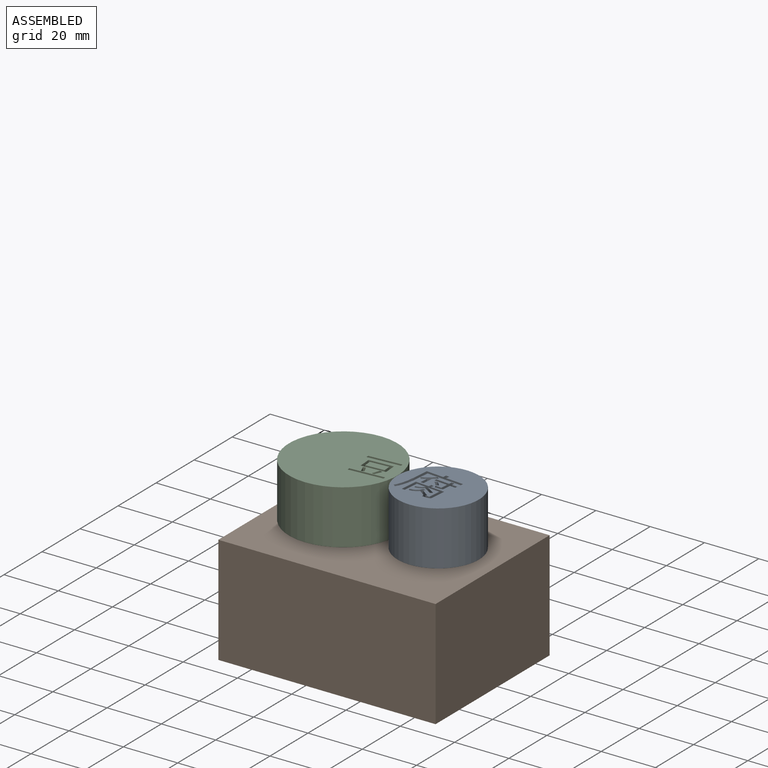
[diagram: assembled view]
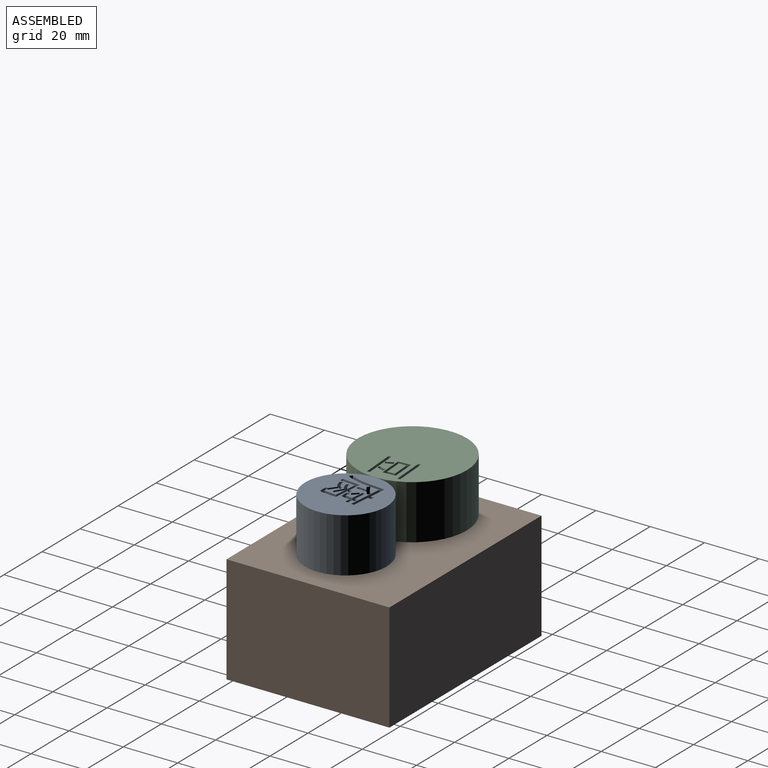
[diagram: assembled view, second angle]
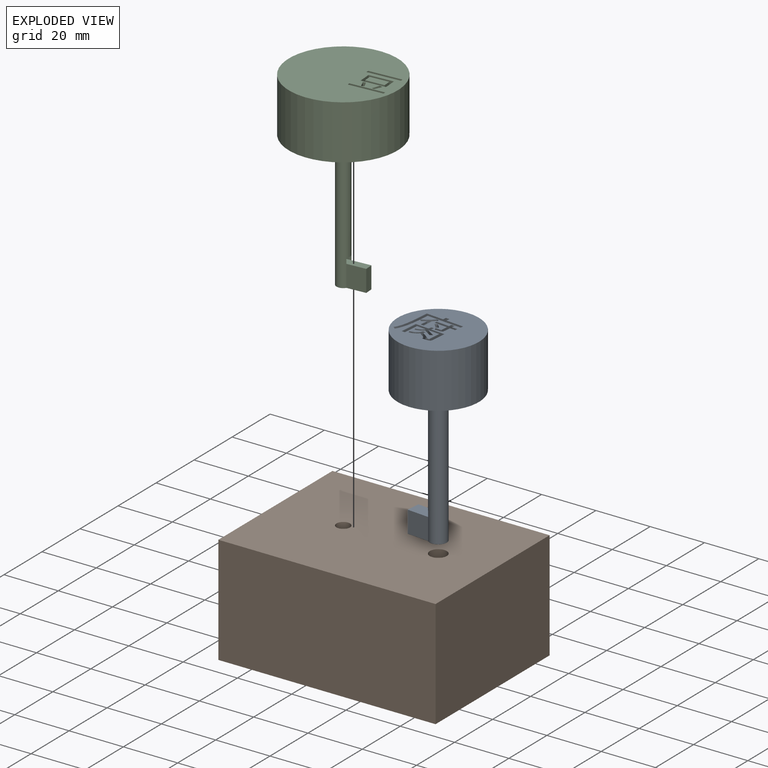
[diagram: exploded view]
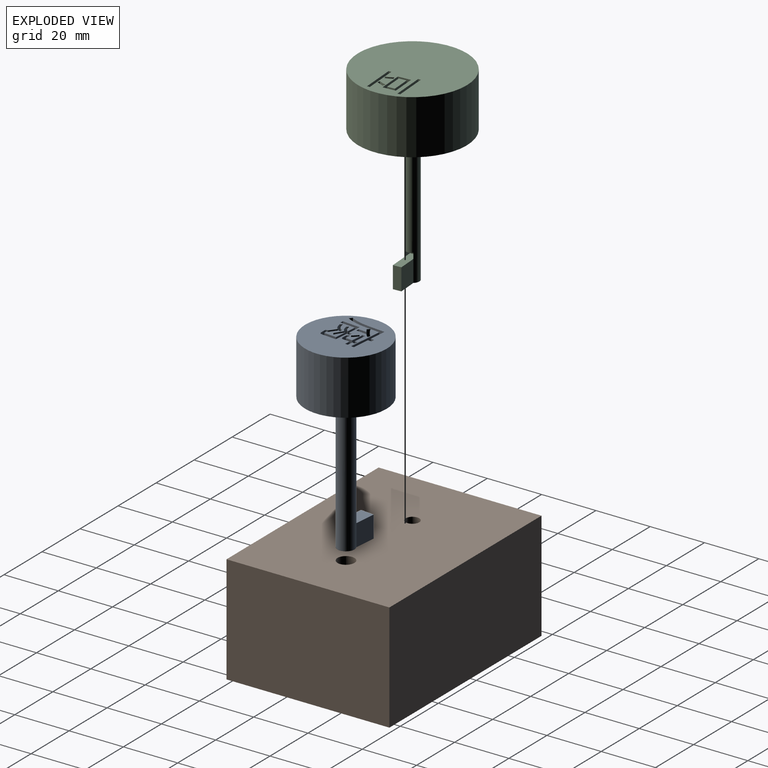
[diagram: exploded view, second angle]
ASSEMBLY  parts=3 mates=2
PART A: 90 faces, bbox 30x30x70 mm
  f0: cylinder r=3.13mm len=50mm, axis (0,0,1), area 924.8mm2, adj f3,f4,f5,f6,f8,f9,f10
  f1: cylinder r=15mm len=30mm, axis (0,0,-1), area 1885mm2, adj f2,f3
  f2: plane 30x30mm, normal (0,0,1), area 604.8mm2, adj f1,f13,f14,f15,f16,f17,f18,f19
  f3: plane 30x30mm, normal (0,0,-1), area 676.1mm2, adj f0,f1
  f4: plane 13.13x6.26mm, normal (0,0,-1), area 67mm2, adj f0,f5,f6,f7
  f5: plane 8.12x8mm, normal (0,-1,0), area 65mm2, adj f0,f4,f7,f12
  f6: plane 8.12x8mm, normal (0,1,0), area 65mm2, adj f0,f4,f7,f12
  f7: plane 8x5mm, normal (-1,0,0), area 40mm2, adj f4,f5,f6,f12
  f8: plane 2x1.88mm, normal (0,1,0), area 3.8mm2, adj f0,f10,f11,f12
  f9: plane 2x1.88mm, normal (0,-1,0), area 3.8mm2, adj f0,f10,f11,f12
  f10: plane 5x3.13mm, normal (0,0,-1), area 13.8mm2, adj f0,f8,f9,f11
  f11: plane 5x2mm, normal (-1,0,0), area 10mm2, adj f8,f9,f10,f12
  f12: plane 10x5mm, normal (0,0,1), area 50mm2, adj f5,f6,f7,f8,f9,f11
  f13: plane 5.38x3mm, normal (-1,0,0), area 16.1mm2, adj f2,f14,f44,f45
  f14: plane 5.24x3mm, normal (0,-1,0), area 15.7mm2, adj f2,f13,f15,f45
  f15: extruded ~3x1.14mm, area 3.5mm2, adj f2,f14,f16,f45
  f16: plane 3x1.04mm, normal (0,-1,0), area 3.1mm2, adj f2,f15,f17,f45
  f17: extruded ~3x1.14mm, area 3.5mm2, adj f2,f16,f18,f45
  f18: plane 4.91x3mm, normal (0,-1,0), area 14.7mm2, adj f2,f17,f19,f45
  f19: plane 6.63x3mm, normal (1,0,0), area 19.9mm2, adj f2,f18,f20,f45
  f20: plane 3x1.18mm, normal (0,1,0), area 3.5mm2, adj f2,f19,f21,f45
  f21: plane 5.69x3mm, normal (-1,0,0), area 17.1mm2, adj f2,f20,f22,f45
  f22: plane 3.35x3mm, normal (0,1,0), area 10mm2, adj f2,f21,f23,f45
  f23: extruded ~3x2.74mm, area 10mm2, adj f2,f22,f24,f45
  f24: extruded ~3x0.75mm, area 2.8mm2, adj f2,f23,f25,f45
  f25: extruded ~3x2.86mm, area 10mm2, adj f2,f24,f26,f45
  f26: extruded ~3.14x3mm, area 10.6mm2, adj f2,f25,f27,f45
  f27: plane 3x0.76mm, normal (-0.66,0.75,0), area 3.1mm2, adj f2,f26,f28,f45
  f28: extruded ~3.45x3mm, area 11.6mm2, adj f2,f27,f29,f45
  f29: plane 3x0.07mm, normal (-0.9,0.43,0), area 0.2mm2, adj f2,f28,f30,f45
  f30: plane 4.32x3mm, normal (0,1,0), area 13mm2, adj f2,f29,f31,f45
  f31: plane 4.44x3mm, normal (1,0,0), area 13.3mm2, adj f2,f30,f32,f45
  f32: extruded ~3x0.3mm, area 1.4mm2, adj f2,f31,f33,f45
  f33: extruded ~3x1.23mm, area 3.7mm2, adj f2,f32,f34,f45
  f34: plane 3x0.43mm, normal (-0.66,0.75,0), area 1.7mm2, adj f2,f33,f35,f45
  f35: extruded ~3.12x3mm, area 10.8mm2, adj f2,f34,f36,f45
  f36: extruded ~3x0.83mm, area 2.6mm2, adj f2,f35,f37,f45
  f37: plane 3x1.06mm, normal (0,-1,0), area 3.2mm2, adj f2,f36,f38,f45
  f38: extruded ~3.33x3mm, area 13.4mm2, adj f2,f37,f39,f45
  f39: extruded ~3x0.8mm, area 3mm2, adj f2,f38,f40,f45
  f40: extruded ~3.05x3mm, area 10.8mm2, adj f2,f39,f41,f45
  f41: extruded ~3x2.48mm, area 8.7mm2, adj f2,f40,f42,f45
  f42: extruded ~3x0.87mm, area 2.7mm2, adj f2,f41,f43,f45
  f43: extruded ~3x2.53mm, area 7.6mm2, adj f2,f42,f44,f45
  f44: extruded ~3x1.08mm, area 4mm2, adj f2,f13,f43,f45
  f45: plane 11.2x7.79mm, normal (0,0,1), area 41.8mm2, adj f13,f14,f15,f16,f17,f18,f19,f20
  f46: plane 6.56x3mm, normal (0,-1,0), area 19.7mm2, adj f2,f47,f66,f67
  f47: plane 3x1.33mm, normal (-1,0,0), area 4mm2, adj f2,f46,f48,f67
  f48: plane 3x1.32mm, normal (0,-1,0), area 4mm2, adj f2,f47,f49,f67
  f49: plane 3x1.33mm, normal (1,0,0), area 4mm2, adj f2,f48,f50,f67
  f50: plane 6.42x3mm, normal (0,-1,0), area 19.3mm2, adj f2,f49,f51,f67
  f51: plane 5.2x3mm, normal (1,0,0), area 15.6mm2, adj f2,f50,f52,f67
  f52: extruded ~8.59x3mm, area 26.4mm2, adj f2,f51,f53,f67
  f53: extruded ~3x1.01mm, area 3.7mm2, adj f2,f52,f54,f67
  f54: extruded ~9.31x3mm, area 28.7mm2, adj f2,f53,f55,f67
  f55: plane 3x0.69mm, normal (-1,0,0), area 2.1mm2, adj f2,f54,f56,f67
  f56: extruded ~3x0.83mm, area 3.5mm2, adj f2,f55,f57,f67
  f57: extruded ~3x1.58mm, area 5.8mm2, adj f2,f56,f58,f67
  f58: plane 3x2.93mm, normal (1,0,0), area 8.8mm2, adj f2,f57,f59,f67
  f59: plane 3x1.13mm, normal (0,1,0), area 3.4mm2, adj f2,f58,f60,f67
  f60: plane 3.95x3mm, normal (-1,0,0), area 11.9mm2, adj f2,f59,f61,f67
  f61: extruded ~3x1.61mm, area 6.3mm2, adj f2,f60,f62,f67
  f62: plane 3x1.09mm, normal (-0.3,-0.95,0), area 3.4mm2, adj f2,f61,f63,f67
  f63: extruded ~3.8x3.24mm, area 15.1mm2, adj f2,f62,f64,f67
  f64: plane 3.4x3mm, normal (-1,0,0), area 10.2mm2, adj f2,f63,f65,f67
  f65: plane 13.11x3mm, normal (0,1,0), area 39.3mm2, adj f2,f64,f66,f67
  f66: plane 3x1.08mm, normal (-1,0,0), area 3.2mm2, adj f2,f46,f65,f67
  f67: plane 15.85x15.78mm, normal (0,0,1), area 42.5mm2, adj f46,f47,f48,f49,f50,f51,f52,f53
  f68: plane 3x0.81mm, normal (-0.63,0.78,0), area 3.1mm2, adj f2,f69,f71,f72
  f69: extruded ~3x1.94mm, area 7.7mm2, adj f2,f68,f70,f72
  f70: plane 3x0.76mm, normal (0.61,-0.79,0), area 2.9mm2, adj f2,f69,f71,f72
  f71: extruded ~3x1.89mm, area 7.7mm2, adj f2,f68,f70,f72
  f72: plane 2.7x2.32mm, normal (0,0,1), area 2.5mm2, adj f68,f69,f70,f71
  f73: plane 3x1.13mm, normal (-1,0,0), area 3.4mm2, adj f2,f74,f88,f89
  f74: plane 3x1.2mm, normal (0,-1,0), area 3.6mm2, adj f2,f73,f75,f89
  f75: plane 3x1.13mm, normal (1,0,0), area 3.4mm2, adj f2,f74,f76,f89
  f76: plane 4.88x3mm, normal (0,-1,0), area 14.6mm2, adj f2,f75,f77,f89
  f77: plane 3x0.97mm, normal (1,0,0), area 2.9mm2, adj f2,f76,f78,f89
  f78: plane 4.88x3mm, normal (0,1,0), area 14.6mm2, adj f2,f77,f79,f89
  f79: plane 3x2.44mm, normal (1,0,0), area 7.3mm2, adj f2,f78,f80,f89
  f80: extruded ~3x0.3mm, area 1.4mm2, adj f2,f79,f81,f89
  f81: extruded ~3x1.84mm, area 5.5mm2, adj f2,f80,f82,f89
  f82: extruded ~3x0.97mm, area 3.1mm2, adj f2,f81,f83,f89
  f83: extruded ~3x2.38mm, area 7.2mm2, adj f2,f82,f84,f89
  f84: extruded ~3x1.02mm, area 3.9mm2, adj f2,f83,f85,f89
  f85: plane 3x2.46mm, normal (-1,0,0), area 7.4mm2, adj f2,f84,f86,f89
  f86: plane 3x2.08mm, normal (0,1,0), area 6.2mm2, adj f2,f85,f87,f89
  f87: plane 3x0.97mm, normal (-1,0,0), area 2.9mm2, adj f2,f86,f88,f89
  f88: plane 3x2.08mm, normal (0,-1,0), area 6.2mm2, adj f2,f73,f87,f89
  f89: plane 8.15x5.76mm, normal (0,0,1), area 15.2mm2, adj f73,f74,f75,f76,f77,f78,f79,f80
PART B: 8 faces, bbox 80x60x40 mm
  f0: plane 60x40mm, normal (1,0,0), area 2400mm2, adj f1,f3,f4,f5
  f1: plane 80x40mm, normal (0,1,0), area 3200mm2, adj f0,f2,f4,f5
  f2: plane 60x40mm, normal (-1,0,0), area 2400mm2, adj f1,f3,f4,f5
  f3: plane 80x40mm, normal (0,-1,0), area 3200mm2, adj f0,f2,f4,f5
  f4: plane 80x60mm, normal (0,0,1), area 4749.6mm2, adj f0,f1,f2,f3,f6,f7
  f5: plane 80x60mm, normal (0,0,-1), area 4749.6mm2, adj f0,f1,f2,f3,f6,f7
  f6: cylinder r=2.5mm len=40mm, axis (0,0,1), area 628.3mm2, adj f4,f5
  f7: cylinder r=3.13mm len=40mm, axis (0,0,1), area 786.2mm2, adj f4,f5
PART C: 43 faces, bbox 40x40x70 mm
  f0: plane 40x40mm, normal (0,0,1), area 1184.5mm2, adj f2,f13,f14,f15,f16,f18,f19,f20
  f1: cylinder r=2.5mm len=50mm, axis (0,0,1), area 753.2mm2, adj f3,f4,f5,f6,f8,f9,f10
  f2: cylinder r=20mm len=40mm, axis (0,0,-1), area 2513.3mm2, adj f0,f3
  f3: plane 40x40mm, normal (0,0,-1), area 1237mm2, adj f1,f2
  f4: plane 11.5x5mm, normal (0,0,-1), area 39.6mm2, adj f1,f5,f6,f7
  f5: plane 8x7mm, normal (0,-1,0), area 56mm2, adj f1,f4,f7,f12
  f6: plane 8x7mm, normal (0,1,0), area 56mm2, adj f1,f4,f7,f12
  f7: plane 8x3mm, normal (1,0,0), area 24mm2, adj f4,f5,f6,f12
  f8: plane 3x2mm, normal (0,1,0), area 6mm2, adj f1,f10,f11,f12
  f9: plane 3x2mm, normal (0,-1,0), area 6mm2, adj f1,f10,f11,f12
  f10: plane 3.5x3mm, normal (0,0,-1), area 10mm2, adj f1,f8,f9,f11
  f11: plane 3x2mm, normal (1,0,0), area 6mm2, adj f8,f9,f10,f12
  f12: plane 10x3mm, normal (0,0,1), area 30mm2, adj f5,f6,f7,f8,f9,f11
  f13: plane 12.62x3mm, normal (0,-1,0), area 37.9mm2, adj f0,f14,f16,f17
  f14: plane 3x1mm, normal (1,0,0), area 3mm2, adj f0,f13,f15,f17
  f15: plane 12.62x3mm, normal (0,1,0), area 37.9mm2, adj f0,f14,f16,f17
  f16: plane 3x1mm, normal (-1,0,0), area 3mm2, adj f0,f13,f15,f17
  f17: plane 12.62x1mm, normal (0,0,1), area 12.6mm2, adj f13,f14,f15,f16
  f18: plane 3x1.14mm, normal (-0.26,-0.96,0), area 3.5mm2, adj f0,f19,f21,f22
  f19: extruded ~3x2.72mm, area 8.9mm2, adj f0,f18,f20,f22
  f20: plane 3x0.92mm, normal (0.29,0.96,0), area 2.9mm2, adj f0,f19,f21,f22
  f21: extruded ~3x2.69mm, area 9.1mm2, adj f0,f18,f20,f22
  f22: plane 3x2.32mm, normal (0,0,1), area 3.1mm2, adj f18,f19,f20,f21
  f23: plane 3x0.95mm, normal (0.27,-0.96,0), area 3mm2, adj f0,f24,f26,f27
  f24: extruded ~3x2.63mm, area 8.4mm2, adj f0,f23,f25,f27
  f25: plane 3x1.01mm, normal (-0.3,0.96,0), area 3.2mm2, adj f0,f24,f26,f27
  f26: extruded ~3x2.59mm, area 8.4mm2, adj f0,f23,f25,f27
  f27: plane 2.9x1.98mm, normal (0,0,1), area 2.8mm2, adj f23,f24,f25,f26
  f28: plane 3x2.76mm, normal (-1,0,0), area 8.3mm2, adj f29,f35,f36,f42
  f29: plane 6.87x3mm, normal (0,1,0), area 20.6mm2, adj f28,f30,f36,f42
  f30: plane 3x2.76mm, normal (1,0,0), area 8.3mm2, adj f29,f35,f36,f42
  f31: plane 8.96x3mm, normal (0,-1,0), area 26.9mm2, adj f0,f32,f34,f36
  f32: plane 4.65x3mm, normal (1,0,0), area 14mm2, adj f0,f31,f33,f36
  f33: plane 8.96x3mm, normal (0,1,0), area 26.9mm2, adj f0,f32,f34,f36
  f34: plane 4.65x3mm, normal (-1,0,0), area 14mm2, adj f0,f31,f33,f36
  f35: plane 6.87x3mm, normal (0,-1,0), area 20.6mm2, adj f28,f30,f36,f42
  f36: plane 8.96x4.65mm, normal (0,0,1), area 22.7mm2, adj f28,f29,f30,f31,f32,f33,f34,f35
  f37: plane 12.11x3mm, normal (0,-1,0), area 36.3mm2, adj f0,f38,f40,f41
  f38: plane 3x0.98mm, normal (1,0,0), area 2.9mm2, adj f0,f37,f39,f41
  f39: plane 12.11x3mm, normal (0,1,0), area 36.3mm2, adj f0,f38,f40,f41
  f40: plane 3x0.98mm, normal (-1,0,0), area 2.9mm2, adj f0,f37,f39,f41
  f41: plane 12.11x0.98mm, normal (0,0,1), area 11.9mm2, adj f37,f38,f39,f40
  f42: plane 6.87x2.76mm, normal (0,0,1), area 19mm2, adj f28,f29,f30,f35
PLACE A rot(axis=(0,0,-1),5.3deg) t=(0.08,1.84,2)mm
PLACE B at identity fixed
PLACE C rot(axis=(0,0,1),4deg) t=(-0.04,1.03,2)mm
MATE revolute B.f6 <-> C.f2  axis (0,0,1) through (-15,0,40)mm
MATE revolute B.f7 <-> A.f1  axis (0,0,1) through (20,0,40)mm
